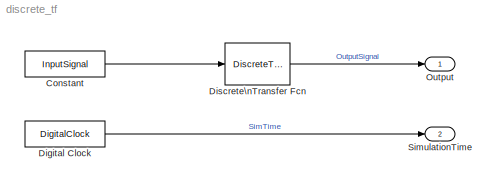
MODEL discrete_tf
KIND model
BLOCK [Constant] Constant
  SID = 13
  Value = InputSignal
BLOCK [DigitalClock] Digital Clock
  SID = 4
  SampleTime = 1e-3
BLOCK [DiscreteTransferFcn] Discrete\nTransfer Fcn
  Denominator = den
  InputPortMap = u0
  Numerator = num
  Ports = [1, 1]
  SID = 14
  SampleTime = 1e-3
BLOCK [Outport] Output
  IconDisplay = Port number
  SID = 2
BLOCK [Outport] SimulationTime
  IconDisplay = Port number
  Port = 2
  SID = 6
LINE Constant:1 -> Discrete\nTransfer Fcn:1
LINE Digital Clock:1 -> SimulationTime:1
LINE Discrete\nTransfer Fcn:1 -> Output:1
